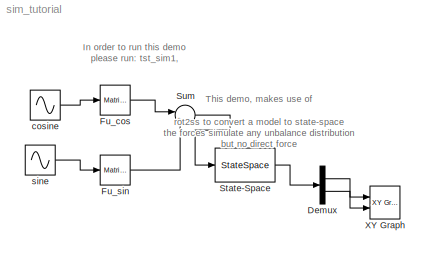
MODEL sim_tutorial
KIND model
BLOCK [Demux] Demux
  Outputs = 2
  Ports = [1, 2]
  SID = 1
BLOCK [Reference] Fu_cos  REF=simulink3/Math/Matrix\nGain
  K = Rot.Fu_cos
  Ports = [1, 1]
  SID = 2
  SourceBlock = simulink3/Math/Matrix\nGain
  SourceProductBaseCode = SL
  SourceProductName = Simulink
  SourceType = Matrix Gain
BLOCK [Reference] Fu_sin  REF=simulink3/Math/Matrix\nGain
  K = Rot.Fu_sin
  Ports = [1, 1]
  SID = 3
  SourceBlock = simulink3/Math/Matrix\nGain
  SourceProductBaseCode = SL
  SourceProductName = Simulink
  SourceType = Matrix Gain
BLOCK [StateSpace] State-Space
  A = a
  B = bu
  C = c
  D = du
  InitialCondition = 0
  Ports = [1, 1]
  SID = 4
BLOCK [Sum] Sum
  IconShape = round
  Inputs = |++
  Ports = [2, 1]
  SID = 5
BLOCK [Reference] XY Graph  REF=simulink3/Sinks/XY Graph
  Ports = [2]
  SID = 6
  SourceBlock = simulink3/Sinks/XY Graph
  SourceProductBaseCode = SL
  SourceProductName = Simulink
  SourceType = XY scope.
  st = -1
  xmax = 2e-6
  xmin = -2e-6
  ymax = 2e-6
  ymin = -2e-6
BLOCK [Sin] cosine
  Frequency = Rot.W
  Phase = pi/2
  Ports = [0, 1]
  SID = 7
  SampleTime = 0
BLOCK [Sin] sine
  Frequency = Rot.W
  Ports = [0, 1]
  SID = 8
  SampleTime = 0
ANNOTATION (root): In order to run this demo\nplease run: tst_sim1,
ANNOTATION (root): This demo, makes use of\nrot2ss to convert a model to state-space\nthe forces simulate any unbalance distribution\nbut no direct force
LINE Demux:1 -> XY Graph:1
LINE Demux:2 -> XY Graph:2
LINE Fu_cos:1 -> Sum:1
LINE Fu_sin:1 -> Sum:2
LINE State-Space:1 -> Demux:1
LINE Sum:1 -> State-Space:1
LINE cosine:1 -> Fu_cos:1
LINE sine:1 -> Fu_sin:1
